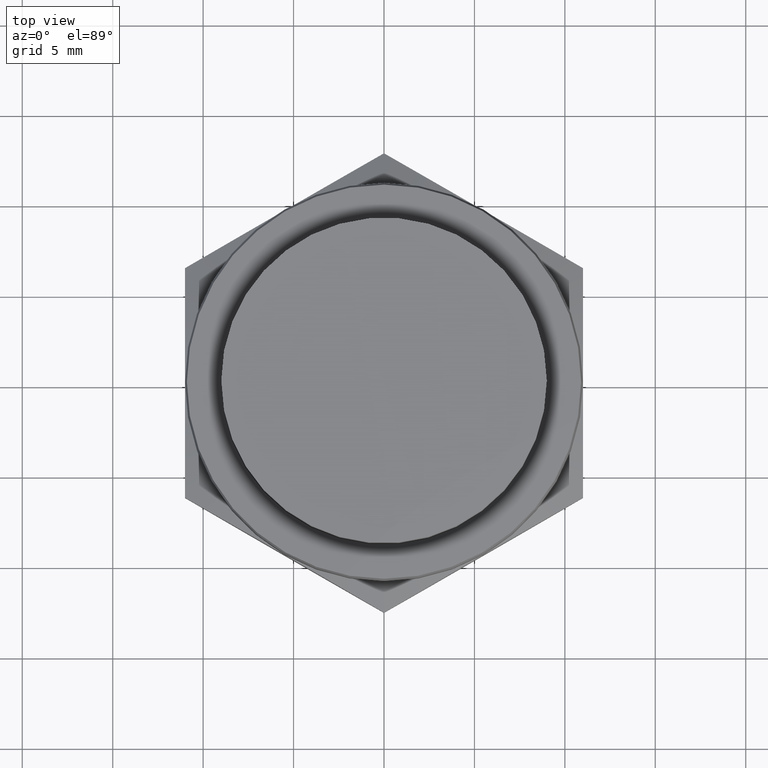
[diagram: clean part render]
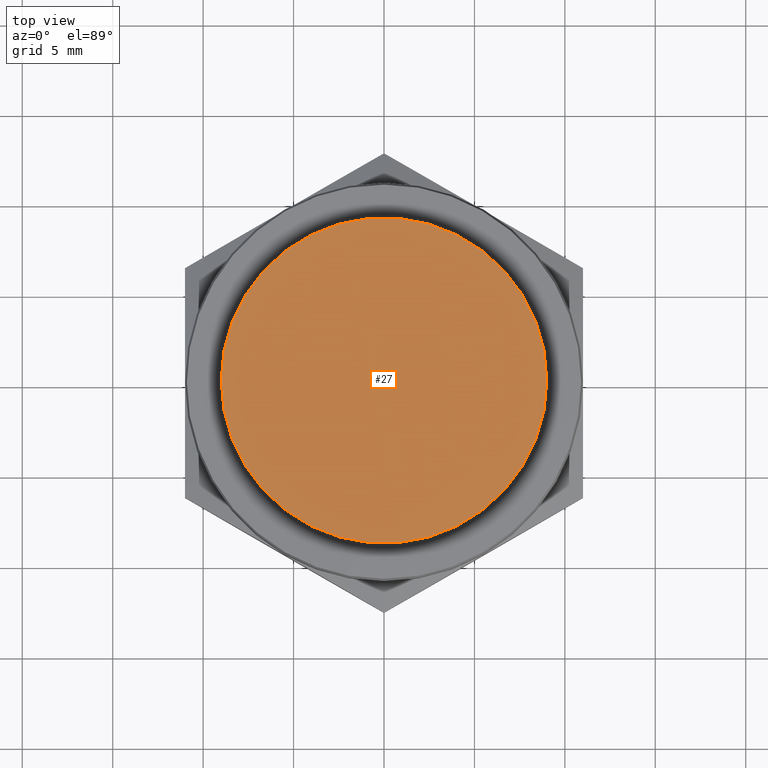
[diagram: same view with one face highlighted and labeled with its STEP entity id]
A machine part, top view. The second image highlights one B-rep face of the part: STEP entity #27.
In plain terms, the highlighted planar face has unit normal (0, 0, 1).
Its self-contained STEP definition (entity closure, byte-faithful):
#2=CARTESIAN_POINT('',(-10.800120002184126,-10.800120002140147,22.499999999999993));
#3=DIRECTION('',(0.0,0.0,1.0));
#4=DIRECTION('',(1.0,0.0,0.0));
#5=AXIS2_PLACEMENT_3D('',#2,#3,#4);
#6=PLANE('',#5);
#7=CARTESIAN_POINT('',(9.0,0.0,22.499999999999993));
#8=VERTEX_POINT('',#7);
#9=CARTESIAN_POINT('',(-9.0,0.0,22.499999999999993));
#10=VERTEX_POINT('',#9);
#11=CARTESIAN_POINT('',(0.0,0.0,22.499999999999993));
#12=DIRECTION('',(0.0,0.0,1.0));
#13=DIRECTION('',(1.0,0.0,0.0));
#14=AXIS2_PLACEMENT_3D('',#11,#12,#13);
#15=CIRCLE('',#14,9.0);
#16=EDGE_CURVE('',#8,#10,#15,.T.);
#17=ORIENTED_EDGE('',*,*,#16,.T.);
#18=CARTESIAN_POINT('',(0.0,0.0,22.499999999999993));
#19=DIRECTION('',(0.0,0.0,1.0));
#20=DIRECTION('',(1.0,0.0,0.0));
#21=AXIS2_PLACEMENT_3D('',#18,#19,#20);
#22=CIRCLE('',#21,9.0);
#23=EDGE_CURVE('',#10,#8,#22,.T.);
#24=ORIENTED_EDGE('',*,*,#23,.T.);
#25=EDGE_LOOP('',(#17,#24));
#26=FACE_OUTER_BOUND('',#25,.T.);
#27=ADVANCED_FACE('',(#26),#6,.T.);